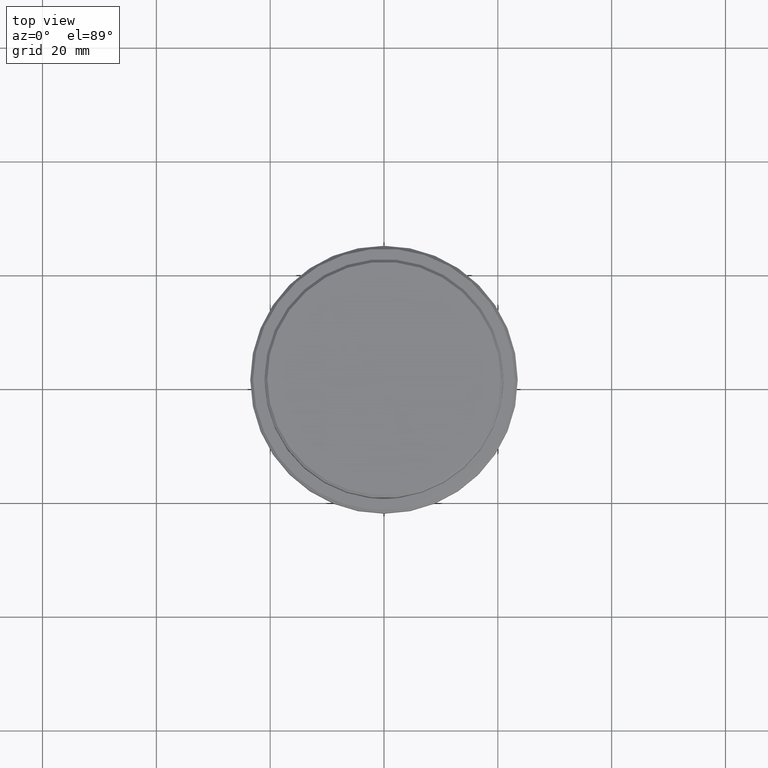
[diagram: clean part render]
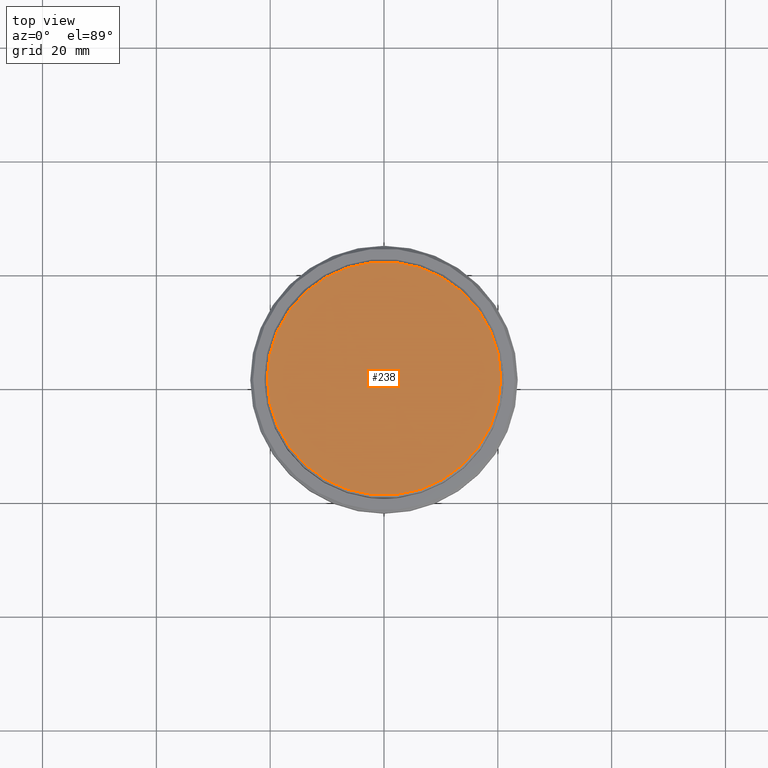
[diagram: same view with one face highlighted and labeled with its STEP entity id]
A machine part, top view. The second image highlights one B-rep face of the part: STEP entity #238.
In plain terms, the highlighted planar face has unit normal (0, -0, 1).
Its self-contained STEP definition (entity closure, byte-faithful):
#38 = ORIENTED_EDGE ( 'NONE', *, *, #599, .T. ) ;
#51 = EDGE_CURVE ( 'NONE', #1284, #784, #710, .T. ) ;
#100 = CIRCLE ( 'NONE', #915, 20.50000000000001776 ) ;
#236 = DIRECTION ( 'NONE',  ( 0.000000000000000000, -0.000000000000000000, 1.000000000000000000 ) ) ;
#238 = ADVANCED_FACE ( 'NONE', ( #610 ), #1290, .T. ) ;
#298 = DIRECTION ( 'NONE',  ( -0.000000000000000000, -0.000000000000000000, 1.000000000000000000 ) ) ;
#409 = CARTESIAN_POINT ( 'NONE',  ( 0.000000000000000000, 0.000000000000000000, 0.000000000000000000 ) ) ;
#488 = CARTESIAN_POINT ( 'NONE',  ( 0.000000000000000000, 0.000000000000000000, 0.000000000000000000 ) ) ;
#599 = EDGE_CURVE ( 'NONE', #784, #1284, #100, .T. ) ;
#610 = FACE_OUTER_BOUND ( 'NONE', #676, .T. ) ;
#676 = EDGE_LOOP ( 'NONE', ( #1297, #38 ) ) ;
#710 = CIRCLE ( 'NONE', #846, 20.50000000000001776 ) ;
#771 = CARTESIAN_POINT ( 'NONE',  ( 20.50000000000001776, 2.541142108230758663E-15, 0.000000000000000000 ) ) ;
#784 = VERTEX_POINT ( 'NONE', #771 ) ;
#795 = CARTESIAN_POINT ( 'NONE',  ( -20.50000000000001776, 0.000000000000000000, 0.000000000000000000 ) ) ;
#800 = DIRECTION ( 'NONE',  ( 1.000000000000000000, 0.000000000000000000, 0.000000000000000000 ) ) ;
#846 = AXIS2_PLACEMENT_3D ( 'NONE', #1407, #298, #800 ) ;
#915 = AXIS2_PLACEMENT_3D ( 'NONE', #488, #1171, #1041 ) ;
#936 = AXIS2_PLACEMENT_3D ( 'NONE', #409, #236, #954 ) ;
#954 = DIRECTION ( 'NONE',  ( 1.000000000000000000, 0.000000000000000000, 0.000000000000000000 ) ) ;
#1041 = DIRECTION ( 'NONE',  ( 1.000000000000000000, 0.000000000000000000, 0.000000000000000000 ) ) ;
#1171 = DIRECTION ( 'NONE',  ( -0.000000000000000000, -0.000000000000000000, 1.000000000000000000 ) ) ;
#1284 = VERTEX_POINT ( 'NONE', #795 ) ;
#1290 = PLANE ( 'NONE',  #936 ) ;
#1297 = ORIENTED_EDGE ( 'NONE', *, *, #51, .T. ) ;
#1407 = CARTESIAN_POINT ( 'NONE',  ( 0.000000000000000000, 0.000000000000000000, 0.000000000000000000 ) ) ;